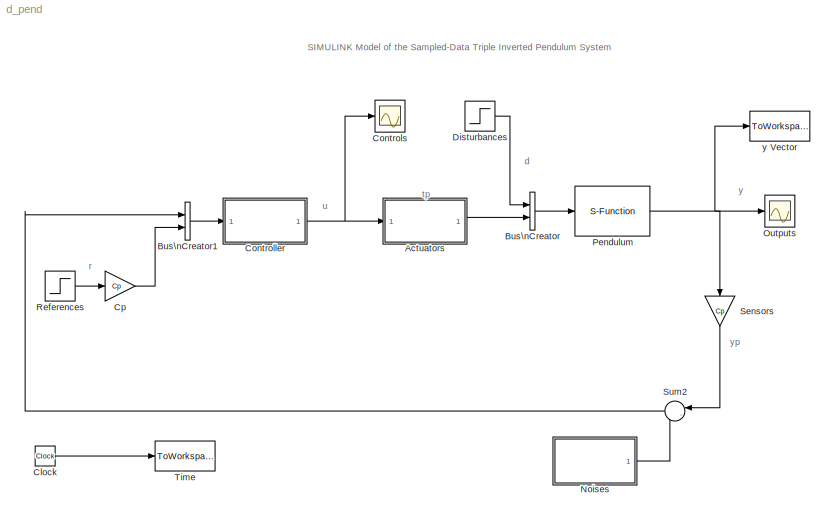
MODEL d_pend
KIND model
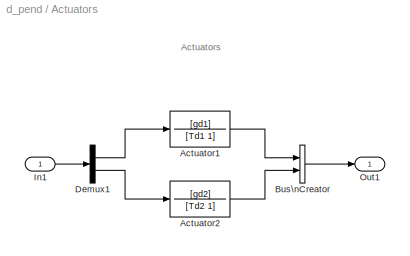
BLOCK [SubSystem] Actuators
  MaskIconFrame = on
  MaskIconOpaque = on
  MaskIconRotate = none
  MaskIconUnits = autoscale
  MinAlgLoopOccurrences = off
  Ports = [1, 1]
  RTWSystemCode = Auto
  TreatAsAtomicUnit = off
BLOCK [TransferFcn] Actuators/Actuator1
  Denominator = [Td1 1]
  Numerator = [gd1]
BLOCK [TransferFcn] Actuators/Actuator2
  Denominator = [Td2 1]
  Numerator = [gd2]
BLOCK [BusCreator] Actuators/Bus\nCreator
  DisplayOption = bar
  Inputs = 2
  Ports = [2, 1]
BLOCK [Demux] Actuators/Demux1
  Outputs = [1, 1]
  Ports = [1, 2]
BLOCK [Inport] Actuators/In1
  IconDisplay = Port number
  LatchInput = off
  Port = 1
BLOCK [Outport] Actuators/Out1
  BusOutputAsStruct = off
  IconDisplay = Port number
BLOCK [BusCreator] Bus\nCreator
  DisplayOption = bar
  Inputs = 2
  Ports = [2, 1]
BLOCK [BusCreator] Bus\nCreator1
  DisplayOption = bar
  Inputs = 2
  Ports = [2, 1]
BLOCK [Clock] Clock
  Decimation = 1
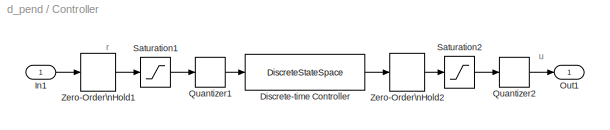
BLOCK [SubSystem] Controller
  MinAlgLoopOccurrences = off
  Ports = [1, 1]
  RTWSystemCode = Auto
  TreatAsAtomicUnit = off
BLOCK [DiscreteStateSpace] Controller/Discrete-time Controller
  A = Akd
  B = Bkd
  C = Ckd
  D = Dkd
  SampleTime = Ts
BLOCK [Inport] Controller/In1
  IconDisplay = Port number
  LatchInput = off
  Port = 1
BLOCK [Outport] Controller/Out1
  BusOutputAsStruct = off
  IconDisplay = Port number
BLOCK [Quantizer] Controller/Quantizer1
  QuantizationInterval = 2*u_adc/2^B_adc
BLOCK [Quantizer] Controller/Quantizer2
  QuantizationInterval = 2*u_dac/2^B_dac
BLOCK [Saturate] Controller/Saturation1
  LowerLimit = -u_adc
  UpperLimit = u_adc
BLOCK [Saturate] Controller/Saturation2
  LowerLimit = -u_dac
  UpperLimit = u_dac
BLOCK [ZeroOrderHold] Controller/Zero-Order\nHold1
  SampleTime = Ts
BLOCK [ZeroOrderHold] Controller/Zero-Order\nHold2
  SampleTime = Ts
BLOCK [Scope] Controls
  DataFormat = StructureWithTime
  MaxDataPoints = 10000
  NumInputPorts = 1
  Ports = [1]
  SaveName = ScopeData1
  YMax = 0.15
  YMin = -0.225
  ZoomMode = xonly
BLOCK [Gain] Cp
  Gain = Cp
  Multiplication = Matrix(K*u)
BLOCK [Step] Disturbances
  After = [0 0 0]
  Before = [0 0 0]
  SampleTime = 0
  Time = 0
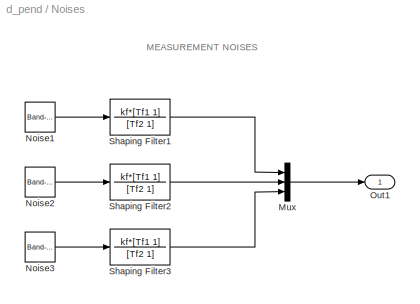
BLOCK [SubSystem] Noises
  MaskIconFrame = on
  MaskIconOpaque = on
  MaskIconRotate = none
  MaskIconUnits = autoscale
  MinAlgLoopOccurrences = off
  Ports = [0, 1]
  RTWSystemCode = Auto
  TreatAsAtomicUnit = off
BLOCK [Mux] Noises/Mux
  DisplayOption = bar
  Inputs = 3
  Ports = [3, 1]
BLOCK [Reference] Noises/Noise1  REF=simulink/Sources/Band-Limited\nWhite Noise
  Cov = 10^(-4)
  Ports = [0, 1]
  ShowPortLabels = on
  SourceBlock = simulink/Sources/Band-Limited\nWhite Noise
  SourceType = Band-Limited White Noise.
  Ts = 0.1
  VectorParams1D = on
  seed = [23341]
BLOCK [Reference] Noises/Noise2  REF=simulink/Sources/Band-Limited\nWhite Noise
  Cov = 10^(-4)
  Ports = [0, 1]
  ShowPortLabels = on
  SourceBlock = simulink/Sources/Band-Limited\nWhite Noise
  SourceType = Band-Limited White Noise.
  Ts = 0.1
  VectorParams1D = on
  seed = [57456]
BLOCK [Reference] Noises/Noise3  REF=simulink/Sources/Band-Limited\nWhite Noise
  Cov = 10^(-4)
  Ports = [0, 1]
  ShowPortLabels = on
  SourceBlock = simulink/Sources/Band-Limited\nWhite Noise
  SourceType = Band-Limited White Noise.
  Ts = 0.1
  VectorParams1D = on
  seed = [79865]
BLOCK [Outport] Noises/Out1
  BusOutputAsStruct = off
  IconDisplay = Port number
BLOCK [TransferFcn] Noises/Shaping Filter1
  Denominator = [Tf2  1]
  Numerator = kf*[Tf1  1]
BLOCK [TransferFcn] Noises/Shaping Filter2
  Denominator = [Tf2  1]
  Numerator = kf*[Tf1  1]
BLOCK [TransferFcn] Noises/Shaping Filter3
  Denominator = [Tf2  1]
  Numerator = kf*[Tf1  1]
BLOCK [Scope] Outputs
  DataFormat = StructureWithTime
  MaxDataPoints = 100000
  NumInputPorts = 1
  Ports = [1]
  YMax = 1000
  YMin = -50
  ZoomMode = yonly
BLOCK [S-Function] Pendulum
  FunctionName = s_pend
  Ports = [1, 1]
BLOCK [Step] References
  After = [0  -0.1  0.2]
  Before = [0  0  0]
  SampleTime = 0
  Time = 0
BLOCK [Gain] Sensors
  Gain = Cp
  Multiplication = Matrix(K*u)
BLOCK [Sum] Sum2
  IconShape = round
  Inputs = |--
  Ports = [2, 1]
BLOCK [ToWorkspace] Time
  MaxDataPoints = inf
  SampleTime = -1
  SaveFormat = Array
  VariableName = t
BLOCK [ToWorkspace] y Vector
  MaxDataPoints = inf
  SampleTime = -1
  SaveFormat = Array
  VariableName = y
ANNOTATION (root): SIMULINK Model of the Sampled-Data Triple Inverted Pendulum System
ANNOTATION (root): d
ANNOTATION (root): r
ANNOTATION (root): tp
ANNOTATION (root): u
ANNOTATION (root): y
ANNOTATION (root): yp
ANNOTATION Actuators: Actuators
ANNOTATION Controller: r
ANNOTATION Controller: u
ANNOTATION Noises: MEASUREMENT NOISES
LINE Actuators/Actuator1:1 -> Actuators/Bus\nCreator:1
LINE Actuators/Actuator2:1 -> Actuators/Bus\nCreator:2
LINE Actuators/Bus\nCreator:1 -> Actuators/Out1:1
LINE Actuators/Demux1:1 -> Actuators/Actuator1:1
LINE Actuators/Demux1:2 -> Actuators/Actuator2:1
LINE Actuators/In1:1 -> Actuators/Demux1:1
LINE Actuators:1 -> Bus\nCreator:2
LINE Bus\nCreator1:1 -> Controller:1
LINE Bus\nCreator:1 -> Pendulum:1
LINE Clock:1 -> Time:1
LINE Controller/Discrete-time Controller:1 -> Controller/Zero-Order\nHold2:1
LINE Controller/In1:1 -> Controller/Zero-Order\nHold1:1
LINE Controller/Quantizer1:1 -> Controller/Discrete-time Controller:1
LINE Controller/Quantizer2:1 -> Controller/Out1:1
LINE Controller/Saturation1:1 -> Controller/Quantizer1:1
LINE Controller/Saturation2:1 -> Controller/Quantizer2:1
LINE Controller/Zero-Order\nHold1:1 -> Controller/Saturation1:1
LINE Controller/Zero-Order\nHold2:1 -> Controller/Saturation2:1
NET Controller:1 -> Actuators:1, Controls:1
LINE Cp:1 -> Bus\nCreator1:2
LINE Disturbances:1 -> Bus\nCreator:1
LINE Noises/Mux:1 -> Noises/Out1:1
LINE Noises/Noise1:1 -> Noises/Shaping Filter1:1
LINE Noises/Noise2:1 -> Noises/Shaping Filter2:1
LINE Noises/Noise3:1 -> Noises/Shaping Filter3:1
LINE Noises/Shaping Filter1:1 -> Noises/Mux:1
LINE Noises/Shaping Filter2:1 -> Noises/Mux:2
LINE Noises/Shaping Filter3:1 -> Noises/Mux:3
LINE Noises:1 -> Sum2:2
NET Pendulum:1 -> Outputs:1, Sensors:1, y Vector:1
LINE References:1 -> Cp:1
LINE Sensors:1 -> Sum2:1
LINE Sum2:1 -> Bus\nCreator1:1
note: NET lines group one-source signal fan-out (src -> all destinations, sorted); 1:1 wires keep LINE
